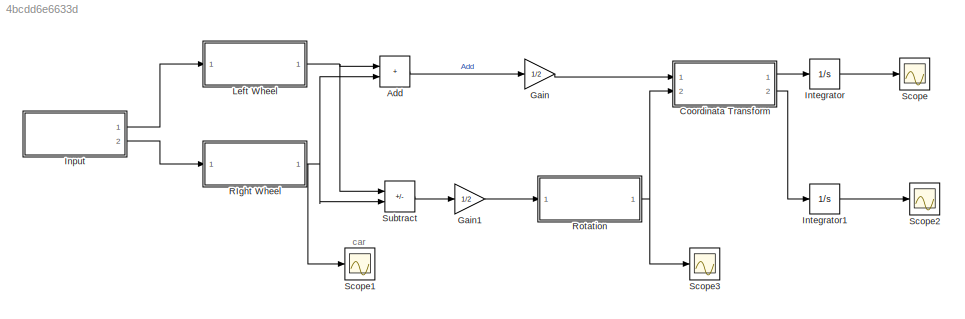
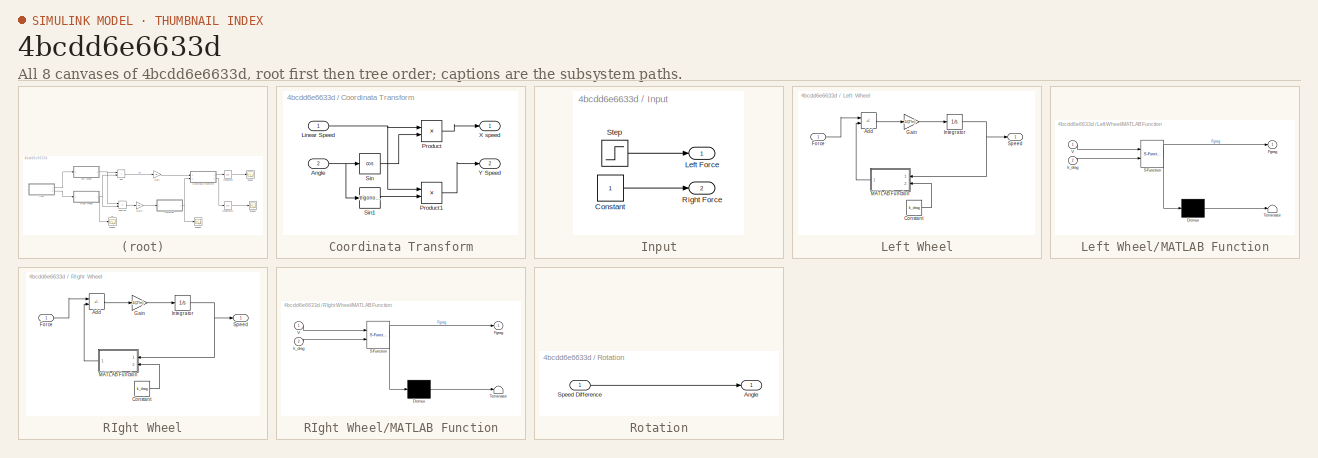
[diagram: thumbnail index - all 8 canvases of the model, root first then tree order]
MODEL slx_4bcdd6e6633d
KIND model
CONFIG AbsTol = auto
CONFIG EnableMultiTasking = off
CONFIG FixedStep = auto
CONFIG MaxStep = auto
CONFIG MinStep = auto
CONFIG RelTol = 1e-3
CONFIG SampleTimeConstraint = Unconstrained
CONFIG SolverName = VariableStepAuto
CONFIG StartTime = 0.0
CONFIG StopTime = 30
BLOCK [Sum] Add
  IconShape = rectangular
  Ports = [2, 1]
BLOCK [SubSystem] Coordinata Transform
  Ports = [2, 2]
  RequestExecContextInheritance = off
BLOCK [Inport] Coordinata Transform/Angle
  Port = 2
BLOCK [Inport] Coordinata Transform/Linear Speed
BLOCK [Product] Coordinata Transform/Product
  Ports = [2, 1]
BLOCK [Product] Coordinata Transform/Product1
  Ports = [2, 1]
BLOCK [Trigonometry] Coordinata Transform/Sin
  Operator = cos
  Ports = [1, 1]
BLOCK [Trigonometry] Coordinata Transform/Sin1
  Ports = [1, 1]
BLOCK [Outport] Coordinata Transform/X speed
BLOCK [Outport] Coordinata Transform/Y Speed
  Port = 2
BLOCK [Gain] Gain
  Gain = 1/2
BLOCK [Gain] Gain1
  Gain = 1/2
BLOCK [SubSystem] Input
  Ports = [0, 2]
  RequestExecContextInheritance = off
BLOCK [Constant] Input/Constant
BLOCK [Outport] Input/Left Force
BLOCK [Outport] Input/Right Force
  Port = 2
BLOCK [Step] Input/Step
  SampleTime = 0
BLOCK [Integrator] Integrator
  Ports = [1, 1]
BLOCK [Integrator] Integrator1
  Ports = [1, 1]
BLOCK [SubSystem] Left Wheel
  Ports = [1, 1]
  RequestExecContextInheritance = off
BLOCK [Sum] Left Wheel/Add
  IconShape = rectangular
  Inputs = +-
  Ports = [2, 1]
BLOCK [Constant] Left Wheel/Constant
  Value = k_drag
BLOCK [Inport] Left Wheel/Force
BLOCK [Gain] Left Wheel/Gain
  Gain = 1/(2*m)
BLOCK [Integrator] Left Wheel/Integrator
  Ports = [1, 1]
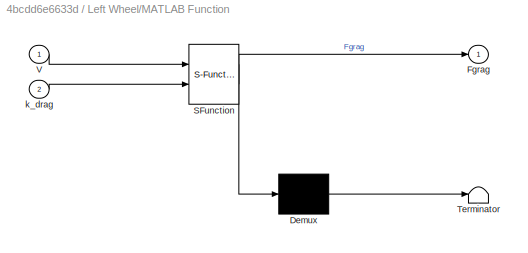
BLOCK [SubSystem] Left Wheel/MATLAB Function
  ErrorFcn = Stateflow.Translate.translate
  PermitHierarchicalResolution = ExplicitOnly
  Ports = [2, 1]
  RequestExecContextInheritance = off
  SFBlockType = MATLAB Function
  TreatAsAtomicUnit = on
BLOCK [Demux] Left Wheel/MATLAB Function/ Demux 
  Outputs = 1
  Ports = [1, 1]
BLOCK [S-Function] Left Wheel/MATLAB Function/ SFunction 
  EnableBusSupport = on
  FunctionName = sf_sfun
  PortCounts = [2 2]
  Ports = [2, 2]
  SFcnIsStateOwnerBlock = off
  SFunctionDeploymentMode = off
  Tag = Stateflow S-Function 2
BLOCK [Terminator] Left Wheel/MATLAB Function/ Terminator 
BLOCK [Outport] Left Wheel/MATLAB Function/Fgrag
BLOCK [Inport] Left Wheel/MATLAB Function/V
BLOCK [Inport] Left Wheel/MATLAB Function/k_drag
  Port = 2
BLOCK [Outport] Left Wheel/Speed
BLOCK [SubSystem] RIght Wheel
  Ports = [1, 1]
  RequestExecContextInheritance = off
BLOCK [Sum] RIght Wheel/Add
  IconShape = rectangular
  Inputs = +-
  Ports = [2, 1]
BLOCK [Constant] RIght Wheel/Constant
  Value = k_drag
BLOCK [Inport] RIght Wheel/Force
BLOCK [Gain] RIght Wheel/Gain
  Gain = 1/(2*m)
BLOCK [Integrator] RIght Wheel/Integrator
  Ports = [1, 1]
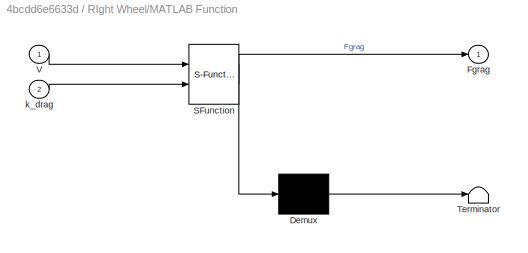
BLOCK [SubSystem] RIght Wheel/MATLAB Function
  ErrorFcn = Stateflow.Translate.translate
  PermitHierarchicalResolution = ExplicitOnly
  Ports = [2, 1]
  RequestExecContextInheritance = off
  SFBlockType = MATLAB Function
  TreatAsAtomicUnit = on
BLOCK [Demux] RIght Wheel/MATLAB Function/ Demux 
  Outputs = 1
  Ports = [1, 1]
BLOCK [S-Function] RIght Wheel/MATLAB Function/ SFunction 
  EnableBusSupport = on
  FunctionName = sf_sfun
  PortCounts = [2 2]
  Ports = [2, 2]
  SFcnIsStateOwnerBlock = off
  SFunctionDeploymentMode = off
  Tag = Stateflow S-Function 1
BLOCK [Terminator] RIght Wheel/MATLAB Function/ Terminator 
BLOCK [Outport] RIght Wheel/MATLAB Function/Fgrag
BLOCK [Inport] RIght Wheel/MATLAB Function/V
BLOCK [Inport] RIght Wheel/MATLAB Function/k_drag
  Port = 2
BLOCK [Outport] RIght Wheel/Speed
BLOCK [SubSystem] Rotation
  Ports = [1, 1]
  RequestExecContextInheritance = off
BLOCK [Outport] Rotation/Angle
BLOCK [Inport] Rotation/Speed Difference
BLOCK [Scope] Scope
  Floating = off
  NumInputPorts = 1
  Ports = [1]
  ScopeSpecificationString = Simulink.scopes.TimeScopeBlockCfg('CurrentConfiguration', extmgr.ConfigurationSet(extmgr.Configuration('Core','General UI',true),extmgr.Configuration('Core','Source UI',true),extmgr.Configuration('Sources','WiredSimulink',true),extmgr.Configuration('Visuals','Time Domain',true,'SerializedDisplays',{struct('MinYLimReal','-0.65879','MaxYLimReal','5.92907','YLabelReal','','MinYLimMag','0.00000','MaxY...<+1330ch>
BLOCK [Scope] Scope1
  Floating = off
  NumInputPorts = 1
  Ports = [1]
  ScopeSpecificationString = Simulink.scopes.TimeScopeBlockCfg('CurrentConfiguration', extmgr.ConfigurationSet(extmgr.Configuration('Core','General UI',true),extmgr.Configuration('Core','Source UI',true),extmgr.Configuration('Sources','WiredSimulink',true,'DataLoggingVariableName','ScopeData1'),extmgr.Configuration('Visuals','Time Domain',true,'SerializedDisplays',{struct('MinYLimReal','-0.02282','MaxYLimReal','0.2054','YLabe...<+1366ch>
BLOCK [Scope] Scope2
  Floating = off
  NumInputPorts = 1
  Ports = [1]
  ScopeSpecificationString = Simulink.scopes.TimeScopeBlockCfg('CurrentConfiguration', extmgr.ConfigurationSet(extmgr.Configuration('Core','General UI',true),extmgr.Configuration('Core','Source UI',true),extmgr.Configuration('Sources','WiredSimulink',true,'DataLoggingVariableName','ScopeData2'),extmgr.Configuration('Visuals','Time Domain',true,'SerializedDisplays',{struct('MinYLimReal','-0.20234','MaxYLimReal','1.8211','YLabe...<+1365ch>
BLOCK [Scope] Scope3
  Floating = off
  NumInputPorts = 1
  Ports = [1]
  ScopeSpecificationString = Simulink.scopes.TimeScopeBlockCfg('CurrentConfiguration', extmgr.ConfigurationSet(extmgr.Configuration('Core','General UI',true),extmgr.Configuration('Core','Source UI',true),extmgr.Configuration('Sources','WiredSimulink',true,'DataLoggingVariableName','ScopeData3'),extmgr.Configuration('Visuals','Time Domain',true,'SerializedDisplays',{struct('MinYLimReal','-0.08207','MaxYLimReal','0.00912','YLab...<+1367ch>
BLOCK [Sum] Subtract
  IconShape = rectangular
  Inputs = +-
  Ports = [2, 1]
ANNOTATION (root): car
LINE Add:1 -> Gain:1
NET Coordinata Transform/Angle:1 -> Coordinata Transform/Sin1:1, Coordinata Transform/Sin:1
NET Coordinata Transform/Linear Speed:1 -> Coordinata Transform/Product1:1, Coordinata Transform/Product:1
LINE Coordinata Transform/Product1:1 -> Coordinata Transform/Y Speed:1
LINE Coordinata Transform/Product:1 -> Coordinata Transform/X speed:1
LINE Coordinata Transform/Sin1:1 -> Coordinata Transform/Product1:2
LINE Coordinata Transform/Sin:1 -> Coordinata Transform/Product:2
LINE Coordinata Transform:1 -> Integrator:1
LINE Coordinata Transform:2 -> Integrator1:1
LINE Gain1:1 -> Rotation:1
LINE Gain:1 -> Coordinata Transform:1
LINE Input/Constant:1 -> Input/Right Force:1
LINE Input/Step:1 -> Input/Left Force:1
LINE Input:1 -> Left Wheel:1
LINE Input:2 -> RIght Wheel:1
LINE Integrator1:1 -> Scope2:1
LINE Integrator:1 -> Scope:1
LINE Left Wheel/Add:1 -> Left Wheel/Gain:1
LINE Left Wheel/Constant:1 -> Left Wheel/MATLAB Function:2
LINE Left Wheel/Force:1 -> Left Wheel/Add:1
LINE Left Wheel/Gain:1 -> Left Wheel/Integrator:1
NET Left Wheel/Integrator:1 -> Left Wheel/MATLAB Function:1, Left Wheel/Speed:1
LINE Left Wheel/MATLAB Function:1 -> Left Wheel/Add:2
NET Left Wheel:1 -> Add:1, Subtract:1
LINE RIght Wheel/Add:1 -> RIght Wheel/Gain:1
LINE RIght Wheel/Constant:1 -> RIght Wheel/MATLAB Function:2
LINE RIght Wheel/Force:1 -> RIght Wheel/Add:1
LINE RIght Wheel/Gain:1 -> RIght Wheel/Integrator:1
NET RIght Wheel/Integrator:1 -> RIght Wheel/MATLAB Function:1, RIght Wheel/Speed:1
LINE RIght Wheel/MATLAB Function:1 -> RIght Wheel/Add:2
NET RIght Wheel:1 -> Add:2, Scope1:1, Subtract:2
LINE Rotation/Speed Difference:1 -> Rotation/Angle:1
NET Rotation:1 -> Coordinata Transform:2, Scope3:1
LINE Subtract:1 -> Gain1:1
note: NET lines group one-source signal fan-out (src -> all destinations, sorted); 1:1 wires keep LINE
CHART Left Wheel/MATLAB Function states=1 transitions=1
  STATE_LABEL 'eML_blk_kernel()'
  STATE_LABEL 'SCRIPT:\nfunction Fgrag = get_fgrag(V,k_drag)\n\n    Fgrag=k_drag*V*abs(V);\n'
CHART RIght Wheel/MATLAB Function states=1 transitions=1
  STATE_LABEL 'eML_blk_kernel()'
  STATE_LABEL 'SCRIPT:\nfunction Fgrag = get_fgrag(V,k_drag)\n\n    Fgrag=k_drag*V*abs(V);\n'
CHART  states=0 transitions=0
CHART  states=0 transitions=0
